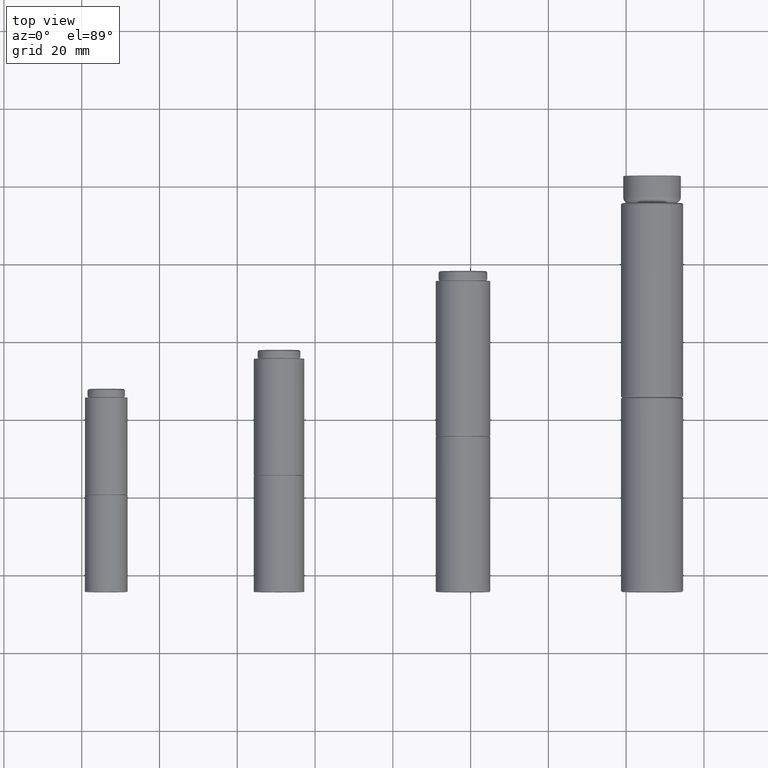
[diagram: clean part render]
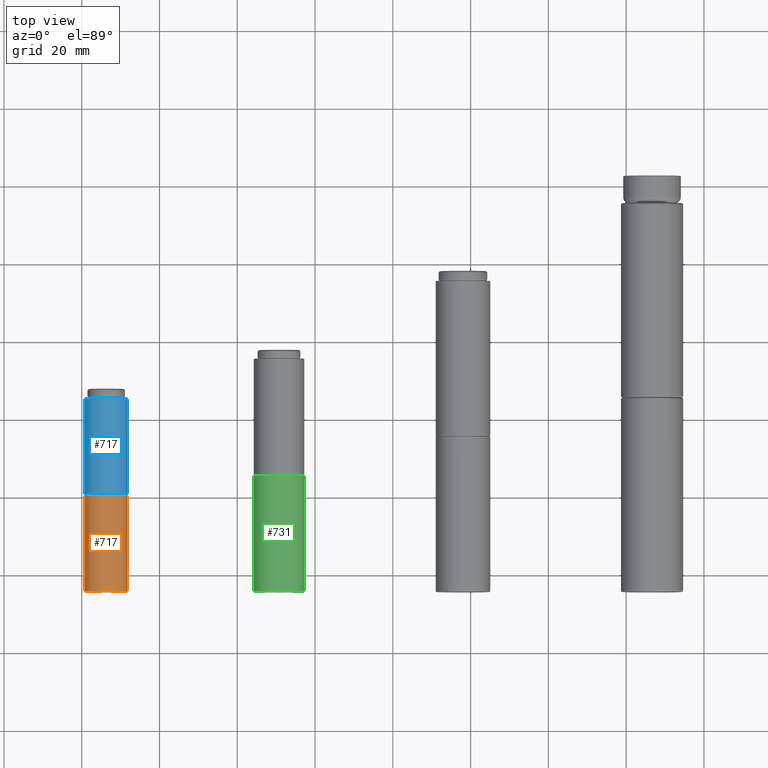
[diagram: same view with three faces highlighted in distinct colors, each labeled with its STEP entity id]
A machine part, top view with three faces highlighted in distinct colors.
Their STEP definitions:

[orange] entity #717 — the highlighted cylindrical surface (bore or boss wall) has radius 5.5 mm, axis along (0, 1, -0).
#132=CYLINDRICAL_SURFACE('',#797,5.5);
#153=FACE_BOUND('',#280,.T.);
#209=FACE_OUTER_BOUND('',#279,.T.);
#279=EDGE_LOOP('',(#579));
#280=EDGE_LOOP('',(#580));
#393=CIRCLE('',#796,5.5);
#394=CIRCLE('',#798,5.5);
#453=VERTEX_POINT('',#1261);
#454=VERTEX_POINT('',#1264);
#513=EDGE_CURVE('',#453,#453,#393,.T.);
#514=EDGE_CURVE('',#454,#454,#394,.T.);
#579=ORIENTED_EDGE('',*,*,#514,.F.);
#580=ORIENTED_EDGE('',*,*,#513,.F.);
#717=ADVANCED_FACE('',(#209,#153),#132,.T.);
#796=AXIS2_PLACEMENT_3D('',#1262,#962,#963);
#797=AXIS2_PLACEMENT_3D('',#1263,#964,#965);
#798=AXIS2_PLACEMENT_3D('',#1265,#966,#967);
#962=DIRECTION('center_axis',(0.,0.,-1.));
#963=DIRECTION('ref_axis',(-1.,0.,0.));
#964=DIRECTION('center_axis',(0.,0.,1.));
#965=DIRECTION('ref_axis',(-1.,0.,0.));
#966=DIRECTION('center_axis',(0.,0.,1.));
#967=DIRECTION('ref_axis',(-1.,0.,0.));
#1261=CARTESIAN_POINT('',(5.5,-6.73555739531044E-16,0.2));
#1262=CARTESIAN_POINT('Origin',(0.,0.,0.2));
#1263=CARTESIAN_POINT('Origin',(0.,0.,0.));
#1264=CARTESIAN_POINT('',(5.5,6.73555739531044E-16,24.8));
#1265=CARTESIAN_POINT('Origin',(0.,0.,24.8));

[blue] entity #717 — the highlighted cylindrical surface (bore or boss wall) has radius 5.5 mm, axis along (0, 1, -0).
#132=CYLINDRICAL_SURFACE('',#797,5.5);
#153=FACE_BOUND('',#280,.T.);
#209=FACE_OUTER_BOUND('',#279,.T.);
#279=EDGE_LOOP('',(#579));
#280=EDGE_LOOP('',(#580));
#393=CIRCLE('',#796,5.5);
#394=CIRCLE('',#798,5.5);
#453=VERTEX_POINT('',#1261);
#454=VERTEX_POINT('',#1264);
#513=EDGE_CURVE('',#453,#453,#393,.T.);
#514=EDGE_CURVE('',#454,#454,#394,.T.);
#579=ORIENTED_EDGE('',*,*,#514,.F.);
#580=ORIENTED_EDGE('',*,*,#513,.F.);
#717=ADVANCED_FACE('',(#209,#153),#132,.T.);
#796=AXIS2_PLACEMENT_3D('',#1262,#962,#963);
#797=AXIS2_PLACEMENT_3D('',#1263,#964,#965);
#798=AXIS2_PLACEMENT_3D('',#1265,#966,#967);
#962=DIRECTION('center_axis',(0.,0.,-1.));
#963=DIRECTION('ref_axis',(-1.,0.,0.));
#964=DIRECTION('center_axis',(0.,0.,1.));
#965=DIRECTION('ref_axis',(-1.,0.,0.));
#966=DIRECTION('center_axis',(0.,0.,1.));
#967=DIRECTION('ref_axis',(-1.,0.,0.));
#1261=CARTESIAN_POINT('',(5.5,-6.73555739531044E-16,0.2));
#1262=CARTESIAN_POINT('Origin',(0.,0.,0.2));
#1263=CARTESIAN_POINT('Origin',(0.,0.,0.));
#1264=CARTESIAN_POINT('',(5.5,6.73555739531044E-16,24.8));
#1265=CARTESIAN_POINT('Origin',(0.,0.,24.8));

[green] entity #731 — the highlighted cylindrical surface (bore or boss wall) has radius 6.5 mm, axis along (-0, 1, -0).
#136=CYLINDRICAL_SURFACE('',#830,6.5);
#165=FACE_BOUND('',#306,.T.);
#223=FACE_OUTER_BOUND('',#305,.T.);
#305=EDGE_LOOP('',(#605));
#306=EDGE_LOOP('',(#606));
#406=CIRCLE('',#829,6.5);
#407=CIRCLE('',#831,6.5);
#466=VERTEX_POINT('',#1307);
#467=VERTEX_POINT('',#1310);
#526=EDGE_CURVE('',#466,#466,#406,.T.);
#527=EDGE_CURVE('',#467,#467,#407,.T.);
#605=ORIENTED_EDGE('',*,*,#527,.F.);
#606=ORIENTED_EDGE('',*,*,#526,.F.);
#731=ADVANCED_FACE('',(#223,#165),#136,.T.);
#829=AXIS2_PLACEMENT_3D('',#1308,#1028,#1029);
#830=AXIS2_PLACEMENT_3D('',#1309,#1030,#1031);
#831=AXIS2_PLACEMENT_3D('',#1311,#1032,#1033);
#1028=DIRECTION('center_axis',(0.,0.,-1.));
#1029=DIRECTION('ref_axis',(-1.,0.,0.));
#1030=DIRECTION('center_axis',(0.,0.,1.));
#1031=DIRECTION('ref_axis',(-1.,0.,0.));
#1032=DIRECTION('center_axis',(0.,0.,1.));
#1033=DIRECTION('ref_axis',(-1.,0.,0.));
#1307=CARTESIAN_POINT('',(6.5,-7.9602041944578E-16,0.2));
#1308=CARTESIAN_POINT('Origin',(0.,0.,0.2));
#1309=CARTESIAN_POINT('Origin',(0.,0.,0.));
#1310=CARTESIAN_POINT('',(6.5,7.9602041944578E-16,29.8));
#1311=CARTESIAN_POINT('Origin',(0.,0.,29.8));